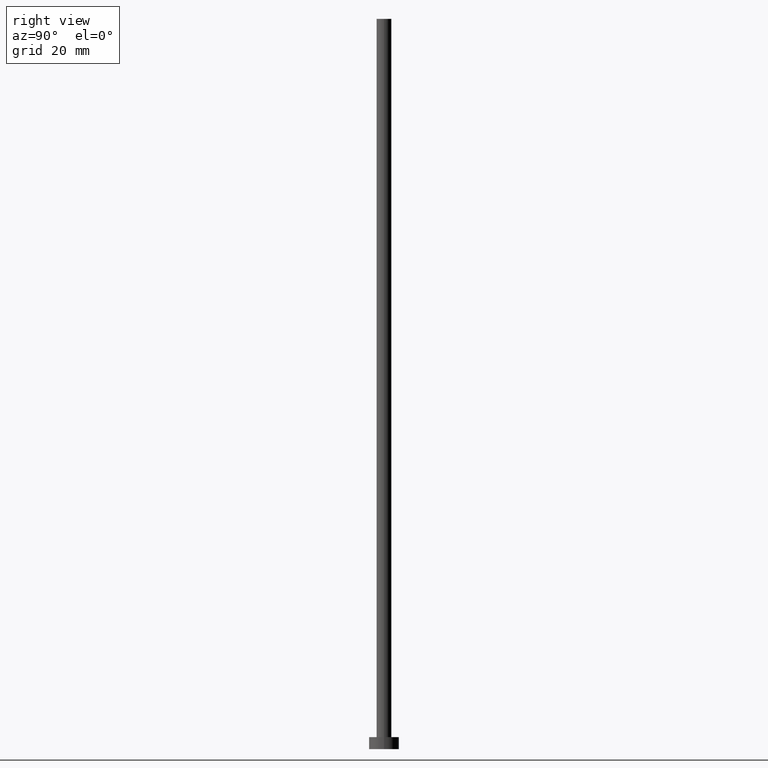
[diagram: clean part render]
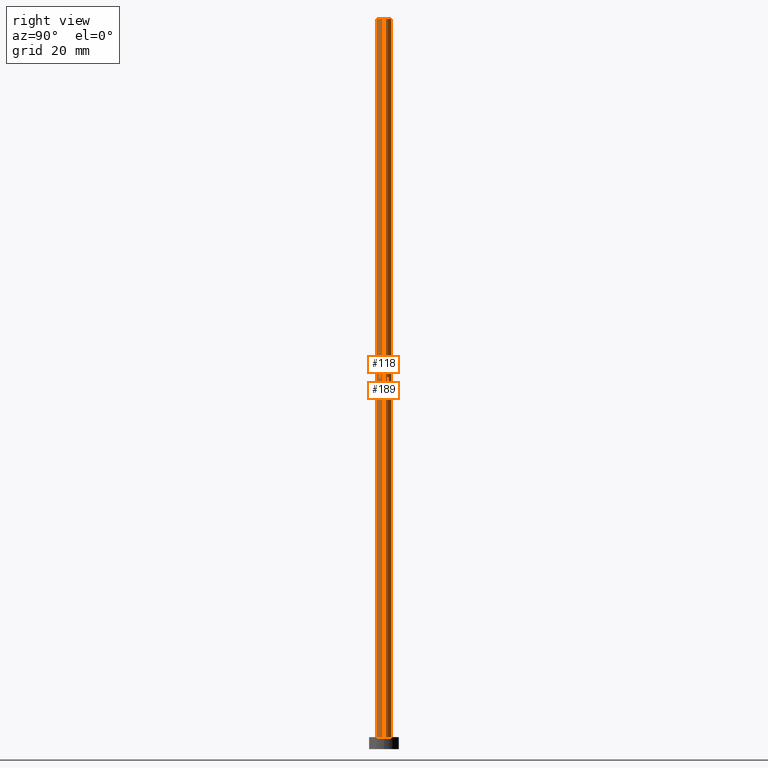
[diagram: same view with one multi-face feature highlighted, each face labeled with its STEP entity id]
A machine part, right view. The highlighted faces form ONE feature: a constant-radius fillet chain: 2 tangent blend faces with common blend radius 1.25 mm. The faces share edges in the B-rep.
Their STEP definitions:
[1] entity #118 (Cylinder):
#5 = VERTEX_POINT ( 'NONE', #32 ) ;
#7 = EDGE_LOOP ( 'NONE', ( #69, #182, #87, #202 ) ) ;
#16 = CARTESIAN_POINT ( 'NONE',  ( -1.250000000000000000, 0.000000000000000000, 122.0000000000000000 ) ) ;
#32 = CARTESIAN_POINT ( 'NONE',  ( -1.250000000000000000, 0.000000000000000000, 2.000000000000000000 ) ) ;
#33 = EDGE_CURVE ( 'NONE', #5, #86, #253, .T. ) ;
#52 = DIRECTION ( 'NONE',  ( 1.000000000000000000, 0.000000000000000000, 0.000000000000000000 ) ) ;
#53 = CARTESIAN_POINT ( 'NONE',  ( -1.250000000000000000, 0.000000000000000000, 122.0000000000000000 ) ) ;
#55 = AXIS2_PLACEMENT_3D ( 'NONE', #114, #210, #154 ) ;
#57 = DIRECTION ( 'NONE',  ( 1.000000000000000000, 0.000000000000000000, 0.000000000000000000 ) ) ;
#69 = ORIENTED_EDGE ( 'NONE', *, *, #115, .F. ) ;
#75 = CYLINDRICAL_SURFACE ( 'NONE', #55, 1.250000000000000000 ) ;
#81 = VECTOR ( 'NONE', #250, 1000.000000000000000 ) ;
#86 = VERTEX_POINT ( 'NONE', #147 ) ;
#87 = ORIENTED_EDGE ( 'NONE', *, *, #139, .T. ) ;
#102 = CIRCLE ( 'NONE', #168, 1.250000000000000000 ) ;
#114 = CARTESIAN_POINT ( 'NONE',  ( 0.000000000000000000, 0.000000000000000000, 122.0000000000000000 ) ) ;
#115 = EDGE_CURVE ( 'NONE', #222, #86, #187, .T. ) ;
#118 = ADVANCED_FACE ( 'NONE', ( #204 ), #75, .T. ) ;
#128 = VERTEX_POINT ( 'NONE', #53 ) ;
#134 = DIRECTION ( 'NONE',  ( -0.000000000000000000, -0.000000000000000000, -1.000000000000000000 ) ) ;
#136 = CARTESIAN_POINT ( 'NONE',  ( 1.250000000000000000, 1.530808498934191571E-16, 122.0000000000000000 ) ) ;
#137 = VECTOR ( 'NONE', #134, 1000.000000000000000 ) ;
#139 = EDGE_CURVE ( 'NONE', #128, #5, #191, .T. ) ;
#141 = AXIS2_PLACEMENT_3D ( 'NONE', #190, #170, #57 ) ;
#147 = CARTESIAN_POINT ( 'NONE',  ( 1.250000000000000000, 1.530808498934191571E-16, 2.000000000000000000 ) ) ;
#154 = DIRECTION ( 'NONE',  ( -1.000000000000000000, 0.000000000000000000, 0.000000000000000000 ) ) ;
#166 = CARTESIAN_POINT ( 'NONE',  ( 0.000000000000000000, 0.000000000000000000, 122.0000000000000000 ) ) ;
#168 = AXIS2_PLACEMENT_3D ( 'NONE', #166, #249, #52 ) ;
#170 = DIRECTION ( 'NONE',  ( 0.000000000000000000, 0.000000000000000000, 1.000000000000000000 ) ) ;
#182 = ORIENTED_EDGE ( 'NONE', *, *, #206, .F. ) ;
#187 = LINE ( 'NONE', #235, #81 ) ;
#190 = CARTESIAN_POINT ( 'NONE',  ( 0.000000000000000000, 0.000000000000000000, 2.000000000000000000 ) ) ;
#191 = LINE ( 'NONE', #16, #137 ) ;
#202 = ORIENTED_EDGE ( 'NONE', *, *, #33, .T. ) ;
#204 = FACE_OUTER_BOUND ( 'NONE', #7, .T. ) ;
#206 = EDGE_CURVE ( 'NONE', #128, #222, #102, .T. ) ;
#210 = DIRECTION ( 'NONE',  ( -0.000000000000000000, -0.000000000000000000, -1.000000000000000000 ) ) ;
#222 = VERTEX_POINT ( 'NONE', #136 ) ;
#235 = CARTESIAN_POINT ( 'NONE',  ( 1.250000000000000000, 1.530808498934191571E-16, 122.0000000000000000 ) ) ;
#249 = DIRECTION ( 'NONE',  ( 0.000000000000000000, 0.000000000000000000, 1.000000000000000000 ) ) ;
#250 = DIRECTION ( 'NONE',  ( -0.000000000000000000, -0.000000000000000000, -1.000000000000000000 ) ) ;
#253 = CIRCLE ( 'NONE', #141, 1.250000000000000000 ) ;
[2] entity #189 (Cylinder):
#5 = VERTEX_POINT ( 'NONE', #32 ) ;
#13 = CIRCLE ( 'NONE', #106, 1.250000000000000000 ) ;
#14 = FACE_OUTER_BOUND ( 'NONE', #224, .T. ) ;
#15 = DIRECTION ( 'NONE',  ( -0.000000000000000000, -0.000000000000000000, -1.000000000000000000 ) ) ;
#16 = CARTESIAN_POINT ( 'NONE',  ( -1.250000000000000000, 0.000000000000000000, 122.0000000000000000 ) ) ;
#32 = CARTESIAN_POINT ( 'NONE',  ( -1.250000000000000000, 0.000000000000000000, 2.000000000000000000 ) ) ;
#35 = CARTESIAN_POINT ( 'NONE',  ( 0.000000000000000000, 0.000000000000000000, 2.000000000000000000 ) ) ;
#53 = CARTESIAN_POINT ( 'NONE',  ( -1.250000000000000000, 0.000000000000000000, 122.0000000000000000 ) ) ;
#61 = DIRECTION ( 'NONE',  ( 1.000000000000000000, 0.000000000000000000, 0.000000000000000000 ) ) ;
#81 = VECTOR ( 'NONE', #250, 1000.000000000000000 ) ;
#85 = ORIENTED_EDGE ( 'NONE', *, *, #115, .T. ) ;
#86 = VERTEX_POINT ( 'NONE', #147 ) ;
#91 = ORIENTED_EDGE ( 'NONE', *, *, #244, .F. ) ;
#93 = CIRCLE ( 'NONE', #225, 1.250000000000000000 ) ;
#106 = AXIS2_PLACEMENT_3D ( 'NONE', #241, #176, #61 ) ;
#109 = ORIENTED_EDGE ( 'NONE', *, *, #139, .F. ) ;
#115 = EDGE_CURVE ( 'NONE', #222, #86, #187, .T. ) ;
#128 = VERTEX_POINT ( 'NONE', #53 ) ;
#132 = DIRECTION ( 'NONE',  ( 0.000000000000000000, 0.000000000000000000, 1.000000000000000000 ) ) ;
#134 = DIRECTION ( 'NONE',  ( -0.000000000000000000, -0.000000000000000000, -1.000000000000000000 ) ) ;
#136 = CARTESIAN_POINT ( 'NONE',  ( 1.250000000000000000, 1.530808498934191571E-16, 122.0000000000000000 ) ) ;
#137 = VECTOR ( 'NONE', #134, 1000.000000000000000 ) ;
#139 = EDGE_CURVE ( 'NONE', #128, #5, #191, .T. ) ;
#147 = CARTESIAN_POINT ( 'NONE',  ( 1.250000000000000000, 1.530808498934191571E-16, 2.000000000000000000 ) ) ;
#164 = ORIENTED_EDGE ( 'NONE', *, *, #185, .T. ) ;
#176 = DIRECTION ( 'NONE',  ( 0.000000000000000000, 0.000000000000000000, 1.000000000000000000 ) ) ;
#185 = EDGE_CURVE ( 'NONE', #86, #5, #93, .T. ) ;
#187 = LINE ( 'NONE', #235, #81 ) ;
#189 = ADVANCED_FACE ( 'NONE', ( #14 ), #207, .T. ) ;
#191 = LINE ( 'NONE', #16, #137 ) ;
#207 = CYLINDRICAL_SURFACE ( 'NONE', #240, 1.250000000000000000 ) ;
#222 = VERTEX_POINT ( 'NONE', #136 ) ;
#224 = EDGE_LOOP ( 'NONE', ( #91, #85, #164, #109 ) ) ;
#225 = AXIS2_PLACEMENT_3D ( 'NONE', #35, #132, #254 ) ;
#235 = CARTESIAN_POINT ( 'NONE',  ( 1.250000000000000000, 1.530808498934191571E-16, 122.0000000000000000 ) ) ;
#237 = CARTESIAN_POINT ( 'NONE',  ( 0.000000000000000000, 0.000000000000000000, 122.0000000000000000 ) ) ;
#240 = AXIS2_PLACEMENT_3D ( 'NONE', #237, #15, #252 ) ;
#241 = CARTESIAN_POINT ( 'NONE',  ( 0.000000000000000000, 0.000000000000000000, 122.0000000000000000 ) ) ;
#244 = EDGE_CURVE ( 'NONE', #222, #128, #13, .T. ) ;
#250 = DIRECTION ( 'NONE',  ( -0.000000000000000000, -0.000000000000000000, -1.000000000000000000 ) ) ;
#252 = DIRECTION ( 'NONE',  ( -1.000000000000000000, 0.000000000000000000, 0.000000000000000000 ) ) ;
#254 = DIRECTION ( 'NONE',  ( 1.000000000000000000, 0.000000000000000000, 0.000000000000000000 ) ) ;